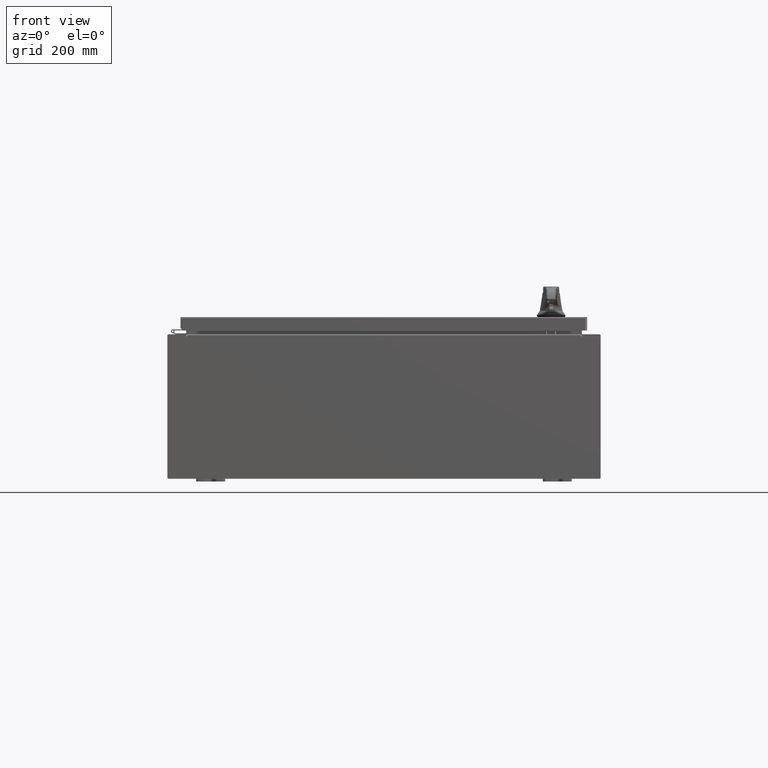
[diagram: clean part render]
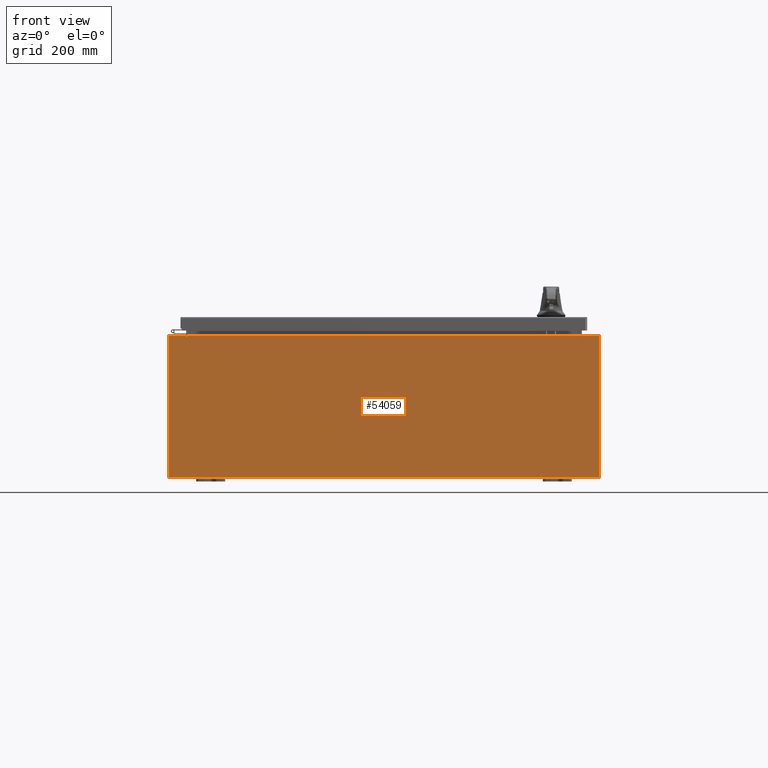
[diagram: same view with one face highlighted and labeled with its STEP entity id]
A machine part, front view. The second image highlights one B-rep face of the part: STEP entity #54059.
In plain terms, the highlighted planar face has unit normal (-0, 1, -0).
Its self-contained STEP definition (entity closure, byte-faithful):
#31 = AXIS2_PLACEMENT_3D ( 'NONE', #99022, #42257, #108655 ) ;
#1125 = ORIENTED_EDGE ( 'NONE', *, *, #63870, .T. ) ;
#3696 = LINE ( 'NONE', #69502, #101534 ) ;
#8996 = EDGE_CURVE ( 'NONE', #117874, #94118, #18900, .T. ) ;
#10133 = LINE ( 'NONE', #76894, #108092 ) ;
#10699 = EDGE_CURVE ( 'NONE', #59329, #32737, #79471, .T. ) ;
#10724 = ORIENTED_EDGE ( 'NONE', *, *, #8996, .F. ) ;
#12485 = EDGE_CURVE ( 'NONE', #36444, #117924, #73263, .T. ) ;
#12776 = LINE ( 'NONE', #24266, #60217 ) ;
#13944 = DIRECTION ( 'NONE',  ( 1.000000000000000000, 0.0000000000000000000, 0.0000000000000000000 ) ) ;
#15758 = DIRECTION ( 'NONE',  ( 0.0000000000000000000, 0.0000000000000000000, 1.000000000000000000 ) ) ;
#15878 = ORIENTED_EDGE ( 'NONE', *, *, #82351, .F. ) ;
#17079 = CARTESIAN_POINT ( 'NONE',  ( -13.67455000000000000, 0.0000000000000000000, 4.925300000000000000 ) ) ;
#17860 = CARTESIAN_POINT ( 'NONE',  ( 13.63719999999999800, 0.0000000000000000000, 4.912300000000000100 ) ) ;
#18900 = CIRCLE ( 'NONE', #59562, 0.01867499999999949400 ) ;
#19203 = VECTOR ( 'NONE', #54847, 39.37007874015748100 ) ;
#21285 = CARTESIAN_POINT ( 'NONE',  ( -13.67455000000000000, 0.0000000000000000000, 4.874950000000000100 ) ) ;
#24266 = CARTESIAN_POINT ( 'NONE',  ( 13.63719999999999800, 0.0000000000000000000, 0.0000000000000000000 ) ) ;
#24373 = FACE_OUTER_BOUND ( 'NONE', #107009, .T. ) ;
#24421 = DIRECTION ( 'NONE',  ( -4.340572780400004900E-014, 0.0000000000000000000, -1.000000000000000000 ) ) ;
#25405 = CARTESIAN_POINT ( 'NONE',  ( 0.0000000000000000000, 0.0000000000000000000, 0.0000000000000000000 ) ) ;
#26019 = VECTOR ( 'NONE', #85672, 39.37007874015748100 ) ;
#26608 = ORIENTED_EDGE ( 'NONE', *, *, #108023, .F. ) ;
#28243 = ORIENTED_EDGE ( 'NONE', *, *, #56626, .T. ) ;
#28581 = VERTEX_POINT ( 'NONE', #17860 ) ;
#28874 = CARTESIAN_POINT ( 'NONE',  ( -13.65587500000000000, 0.0000000000000000000, 4.874950000000000100 ) ) ;
#32737 = VERTEX_POINT ( 'NONE', #17079 ) ;
#32864 = ORIENTED_EDGE ( 'NONE', *, *, #10699, .T. ) ;
#34435 = VERTEX_POINT ( 'NONE', #57188 ) ;
#34907 = DIRECTION ( 'NONE',  ( 0.0000000000000000000, -1.000000000000000000, 0.0000000000000000000 ) ) ;
#36444 = VERTEX_POINT ( 'NONE', #63794 ) ;
#38423 = DIRECTION ( 'NONE',  ( 0.0000000000000000000, 0.0000000000000000000, -1.000000000000000000 ) ) ;
#39704 = CARTESIAN_POINT ( 'NONE',  ( -14.92530000000000200, 0.0000000000000000000, -4.925300000000000000 ) ) ;
#40643 = VECTOR ( 'NONE', #80426, 39.37007874015748100 ) ;
#41567 = CARTESIAN_POINT ( 'NONE',  ( 13.67454999999999800, 0.0000000000000000000, 4.874950000000000100 ) ) ;
#42257 = DIRECTION ( 'NONE',  ( -0.0000000000000000000, 1.000000000000000000, -0.0000000000000000000 ) ) ;
#45319 = CARTESIAN_POINT ( 'NONE',  ( -13.63720000000000400, -7.171100983368691200E-016, 4.912300000000000100 ) ) ;
#53246 = CARTESIAN_POINT ( 'NONE',  ( 13.63719999999999800, 0.0000000000000000000, 4.874950000000000100 ) ) ;
#54059 = ADVANCED_FACE ( 'NONE', ( #24373 ), #119648, .F. ) ;
#54721 = ORIENTED_EDGE ( 'NONE', *, *, #12485, .F. ) ;
#54847 = DIRECTION ( 'NONE',  ( 1.000000000000000000, 0.0000000000000000000, 0.0000000000000000000 ) ) ;
#56626 = EDGE_CURVE ( 'NONE', #56628, #113711, #91069, .T. ) ;
#56628 = VERTEX_POINT ( 'NONE', #99052 ) ;
#57188 = CARTESIAN_POINT ( 'NONE',  ( -13.63720000000000000, -7.171100983368691200E-016, 4.912300000000000100 ) ) ;
#59329 = VERTEX_POINT ( 'NONE', #73368 ) ;
#59562 = AXIS2_PLACEMENT_3D ( 'NONE', #28874, #95196, #38423 ) ;
#60217 = VECTOR ( 'NONE', #90603, 39.37007874015748100 ) ;
#60814 = CARTESIAN_POINT ( 'NONE',  ( 14.92529999999999800, 0.0000000000000000000, -4.925300000000000000 ) ) ;
#63744 = EDGE_CURVE ( 'NONE', #113711, #92527, #3696, .T. ) ;
#63789 = VECTOR ( 'NONE', #81233, 39.37007874015748100 ) ;
#63794 = CARTESIAN_POINT ( 'NONE',  ( 13.67455000000000000, 0.0000000000000000000, 4.925300000000000000 ) ) ;
#63870 = EDGE_CURVE ( 'NONE', #36444, #56628, #70402, .T. ) ;
#69502 = CARTESIAN_POINT ( 'NONE',  ( -14.92530000000000200, 0.0000000000000000000, -4.925300000000000000 ) ) ;
#69826 = LINE ( 'NONE', #72549, #94982 ) ;
#70333 = VECTOR ( 'NONE', #24421, 39.37007874015748100 ) ;
#70402 = LINE ( 'NONE', #70729, #117965 ) ;
#70729 = CARTESIAN_POINT ( 'NONE',  ( -14.92530000000000200, 0.0000000000000000000, 4.925300000000000000 ) ) ;
#71714 = CARTESIAN_POINT ( 'NONE',  ( -14.92530000000000200, 0.0000000000000000000, 4.925300000000000000 ) ) ;
#72549 = CARTESIAN_POINT ( 'NONE',  ( -13.67455000000000000, -0.0000000000000000000, 0.0000000000000000000 ) ) ;
#73263 = LINE ( 'NONE', #90745, #70333 ) ;
#73368 = CARTESIAN_POINT ( 'NONE',  ( -14.92530000000000200, 0.0000000000000000000, 4.925300000000000000 ) ) ;
#76043 = ORIENTED_EDGE ( 'NONE', *, *, #95159, .T. ) ;
#76165 = CARTESIAN_POINT ( 'NONE',  ( -14.92530000000000200, 0.0000000000000000000, 4.925300000000000000 ) ) ;
#76894 = CARTESIAN_POINT ( 'NONE',  ( -13.63720000000000000, -0.0000000000000000000, 0.0000000000000000000 ) ) ;
#78194 = CIRCLE ( 'NONE', #31, 0.01867499999999949400 ) ;
#79471 = LINE ( 'NONE', #76165, #26019 ) ;
#79666 = AXIS2_PLACEMENT_3D ( 'NONE', #25405, #34907, #101254 ) ;
#80426 = DIRECTION ( 'NONE',  ( 0.0000000000000000000, 0.0000000000000000000, -1.000000000000000000 ) ) ;
#81233 = DIRECTION ( 'NONE',  ( -0.0000000000000000000, -0.0000000000000000000, 1.000000000000000000 ) ) ;
#82351 = EDGE_CURVE ( 'NONE', #101945, #28581, #12776, .T. ) ;
#84422 = ORIENTED_EDGE ( 'NONE', *, *, #63744, .T. ) ;
#85672 = DIRECTION ( 'NONE',  ( 1.000000000000000000, 0.0000000000000000000, 0.0000000000000000000 ) ) ;
#86418 = EDGE_CURVE ( 'NONE', #34435, #117874, #10133, .T. ) ;
#90603 = DIRECTION ( 'NONE',  ( 0.0000000000000000000, 0.0000000000000000000, 1.000000000000000000 ) ) ;
#90745 = CARTESIAN_POINT ( 'NONE',  ( 13.67454999999978500, -0.0000000000000000000, -5.935537951421795000E-013 ) ) ;
#91069 = LINE ( 'NONE', #108684, #40643 ) ;
#92527 = VERTEX_POINT ( 'NONE', #39704 ) ;
#94118 = VERTEX_POINT ( 'NONE', #21285 ) ;
#94812 = LINE ( 'NONE', #45319, #19203 ) ;
#94982 = VECTOR ( 'NONE', #15758, 39.37007874015748100 ) ;
#95159 = EDGE_CURVE ( 'NONE', #92527, #59329, #117329, .T. ) ;
#95196 = DIRECTION ( 'NONE',  ( -0.0000000000000000000, 1.000000000000000000, -0.0000000000000000000 ) ) ;
#97086 = EDGE_CURVE ( 'NONE', #34435, #28581, #94812, .T. ) ;
#98065 = DIRECTION ( 'NONE',  ( -1.000000000000000000, -0.0000000000000000000, -0.0000000000000000000 ) ) ;
#99022 = CARTESIAN_POINT ( 'NONE',  ( 13.65587499999999800, 0.0000000000000000000, 4.874950000000000100 ) ) ;
#99052 = CARTESIAN_POINT ( 'NONE',  ( 14.92529999999999800, 0.0000000000000000000, 4.925300000000000000 ) ) ;
#99443 = EDGE_CURVE ( 'NONE', #117924, #101945, #78194, .T. ) ;
#101254 = DIRECTION ( 'NONE',  ( 0.0000000000000000000, -0.0000000000000000000, -1.000000000000000000 ) ) ;
#101534 = VECTOR ( 'NONE', #98065, 39.37007874015748100 ) ;
#101945 = VERTEX_POINT ( 'NONE', #53246 ) ;
#107009 = EDGE_LOOP ( 'NONE', ( #26608, #10724, #119802, #112017, #15878, #111321, #54721, #1125, #28243, #84422, #76043, #32864 ) ) ;
#108023 = EDGE_CURVE ( 'NONE', #94118, #32737, #69826, .T. ) ;
#108092 = VECTOR ( 'NONE', #114723, 39.37007874015748100 ) ;
#108655 = DIRECTION ( 'NONE',  ( 0.0000000000000000000, 0.0000000000000000000, -1.000000000000000000 ) ) ;
#108684 = CARTESIAN_POINT ( 'NONE',  ( 14.92529999999999800, 0.0000000000000000000, 4.925300000000000000 ) ) ;
#111321 = ORIENTED_EDGE ( 'NONE', *, *, #99443, .F. ) ;
#112017 = ORIENTED_EDGE ( 'NONE', *, *, #97086, .T. ) ;
#113711 = VERTEX_POINT ( 'NONE', #60814 ) ;
#114723 = DIRECTION ( 'NONE',  ( 0.0000000000000000000, 0.0000000000000000000, -1.000000000000000000 ) ) ;
#117130 = CARTESIAN_POINT ( 'NONE',  ( -13.63720000000000000, -0.0000000000000000000, 4.874950000000000100 ) ) ;
#117329 = LINE ( 'NONE', #71714, #63789 ) ;
#117874 = VERTEX_POINT ( 'NONE', #117130 ) ;
#117924 = VERTEX_POINT ( 'NONE', #41567 ) ;
#117965 = VECTOR ( 'NONE', #13944, 39.37007874015748100 ) ;
#119648 = PLANE ( 'NONE',  #79666 ) ;
#119802 = ORIENTED_EDGE ( 'NONE', *, *, #86418, .F. ) ;